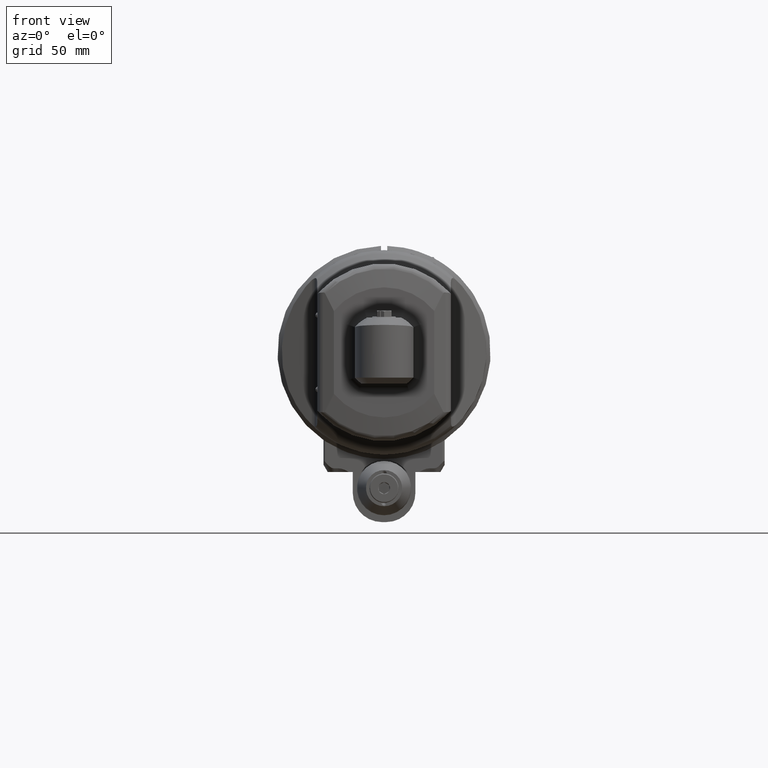
[diagram: clean part render]
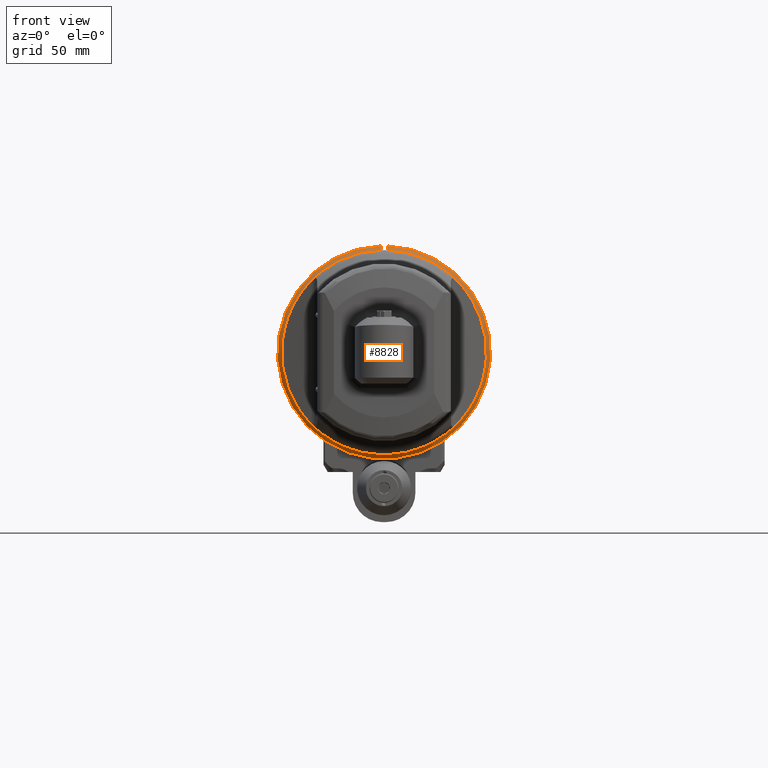
[diagram: same view with one face highlighted and labeled with its STEP entity id]
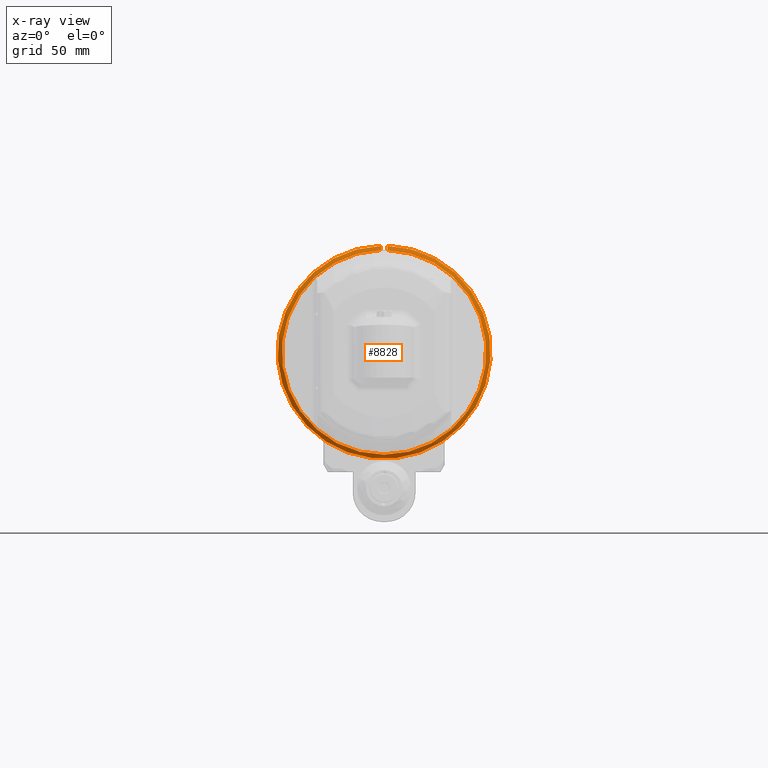
[diagram: x-ray of the same camera — body ghosted, the highlighted face saturated]
A machine part, front view. The second image highlights one B-rep face of the part: STEP entity #8828.
The next image is the same camera in x-ray: the body ghosted, the highlighted face saturated — about 0% of this face is hidden behind the body in this view.
In plain terms, the highlighted conical surface has half-angle 45 deg.
Its self-contained STEP definition (entity closure, byte-faithful):
#156=(
BOUNDED_CURVE()
B_SPLINE_CURVE(2,(#13132,#13133,#13134),.UNSPECIFIED.,.F.,.F.)
B_SPLINE_CURVE_WITH_KNOTS((3,3),(-0.564591459525085,-0.191486343836374),
 .UNSPECIFIED.)
CURVE()
GEOMETRIC_REPRESENTATION_ITEM()
RATIONAL_B_SPLINE_CURVE((1.00850972307627,1.00599717540352,1.00308912932))
REPRESENTATION_ITEM('')
);
#157=(
BOUNDED_CURVE()
B_SPLINE_CURVE(2,(#13137,#13138,#13139),.UNSPECIFIED.,.F.,.F.)
B_SPLINE_CURVE_WITH_KNOTS((3,3),(-5.67826879781681,-5.3051636821038),
 .UNSPECIFIED.)
CURVE()
GEOMETRIC_REPRESENTATION_ITEM()
RATIONAL_B_SPLINE_CURVE((1.00308912932,1.00599717540371,1.00850972307659))
REPRESENTATION_ITEM('')
);
#547=CONICAL_SURFACE('',#9436,50.,0.785398163397448);
#638=FACE_OUTER_BOUND('',#1179,.T.);
#1179=EDGE_LOOP('',(#5976,#5977,#5978,#5979));
#1778=CIRCLE('',#9431,51.);
#1783=CIRCLE('',#9437,49.);
#3680=VERTEX_POINT('',#13061);
#3681=VERTEX_POINT('',#13062);
#3687=VERTEX_POINT('',#13131);
#3688=VERTEX_POINT('',#13135);
#4583=EDGE_CURVE('',#3680,#3681,#1778,.T.);
#4593=EDGE_CURVE('',#3681,#3687,#156,.T.);
#4594=EDGE_CURVE('',#3688,#3687,#1783,.T.);
#4595=EDGE_CURVE('',#3688,#3680,#157,.T.);
#5976=ORIENTED_EDGE('',*,*,#4583,.T.);
#5977=ORIENTED_EDGE('',*,*,#4593,.T.);
#5978=ORIENTED_EDGE('',*,*,#4594,.F.);
#5979=ORIENTED_EDGE('',*,*,#4595,.T.);
#8828=ADVANCED_FACE('',(#638),#547,.T.);
#9431=AXIS2_PLACEMENT_3D('',#13063,#10425,#10426);
#9436=AXIS2_PLACEMENT_3D('',#13130,#10437,#10438);
#9437=AXIS2_PLACEMENT_3D('',#13136,#10439,#10440);
#10425=DIRECTION('center_axis',(0.,-1.,0.));
#10426=DIRECTION('ref_axis',(0.,0.,-1.));
#10437=DIRECTION('center_axis',(0.,1.,0.));
#10438=DIRECTION('ref_axis',(0.,0.,-1.));
#10439=DIRECTION('center_axis',(0.,-1.,0.));
#10440=DIRECTION('ref_axis',(0.,0.,-1.));
#13061=CARTESIAN_POINT('',(-1.5,2.,50.9779364039));
#13062=CARTESIAN_POINT('',(1.5,2.,50.9779364039));
#13063=CARTESIAN_POINT('Origin',(0.,2.,0.));
#13130=CARTESIAN_POINT('Origin',(0.,0.999999999999999,0.));
#13131=CARTESIAN_POINT('',(1.5,0.,48.97703543499));
#13132=CARTESIAN_POINT('Ctrl Pts',(1.5,2.00000000000212,50.9779364038979));
#13133=CARTESIAN_POINT('Ctrl Pts',(1.5,0.979981976849845,49.9574769100383));
#13134=CARTESIAN_POINT('Ctrl Pts',(1.5,2.10193140812418E-12,48.9770354349879));
#13135=CARTESIAN_POINT('',(-1.5,0.,48.97703543499));
#13136=CARTESIAN_POINT('Origin',(0.,0.,0.));
#13137=CARTESIAN_POINT('Ctrl Pts',(-1.5,2.07686229833848E-12,48.9770354349879));
#13138=CARTESIAN_POINT('Ctrl Pts',(-1.5,0.979981976913475,49.957476910102));
#13139=CARTESIAN_POINT('Ctrl Pts',(-1.5,2.00000000013466,50.9779364040305));